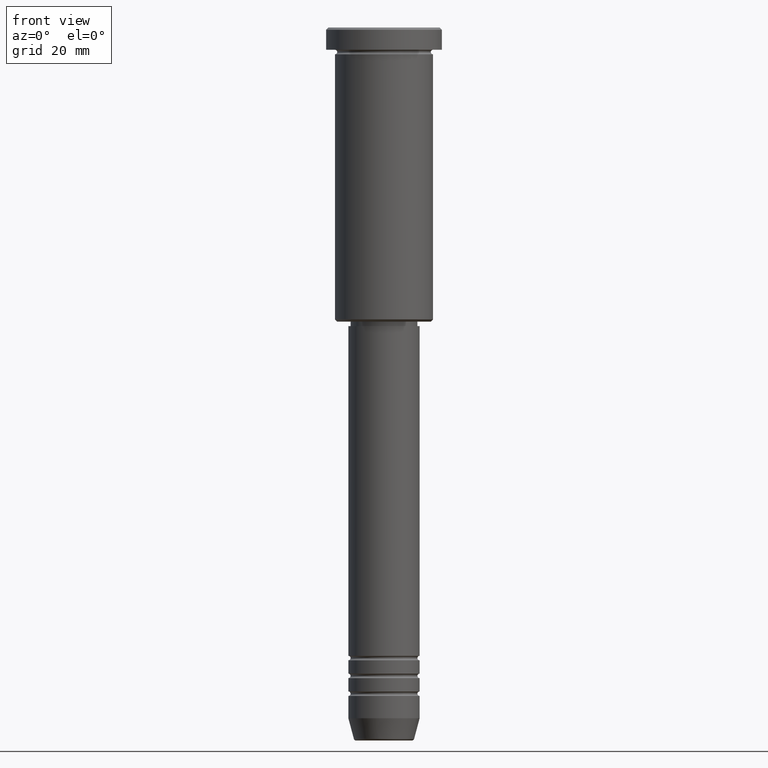
[diagram: clean part render]
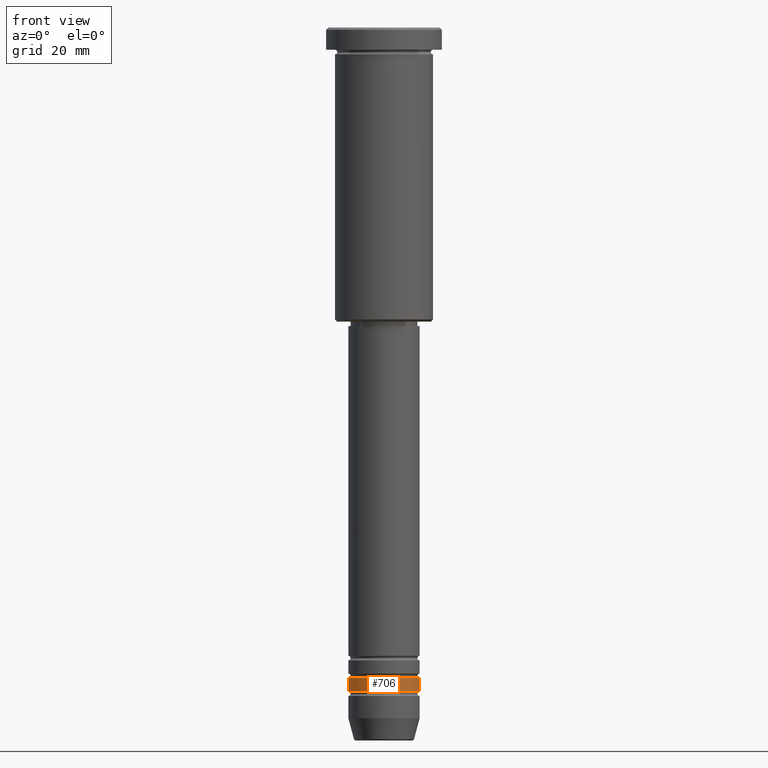
[diagram: same view with one face highlighted and labeled with its STEP entity id]
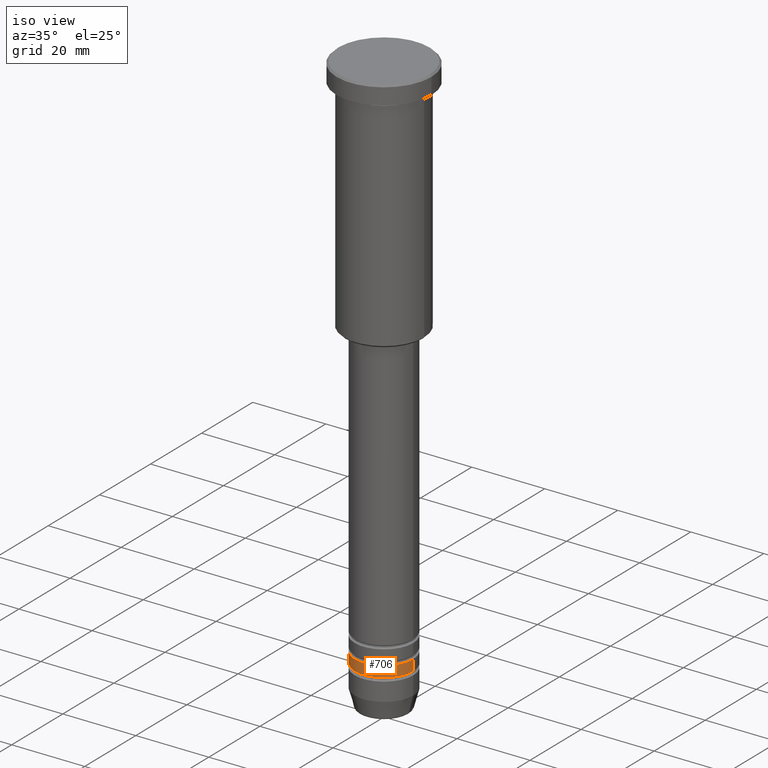
[diagram: same view with one face highlighted and labeled with its STEP entity id]
A machine part, front view. The second image highlights one B-rep face of the part: STEP entity #706.
A second angle (iso view) of the same face is appended — the face is thin or edge-on in the first view.
In plain terms, the highlighted cylindrical surface (edge-blend (fillet) strip) has radius 8 mm, axis along (-0, -0, 1).
Its self-contained STEP definition (entity closure, byte-faithful):
#18 = CARTESIAN_POINT ( 'NONE',  ( 8.000000000000000000, 0.000000000000000000, 0.000000000000000000 ) ) ;
#42 = EDGE_CURVE ( 'NONE', #604, #616, #557, .T. ) ;
#141 = CIRCLE ( 'NONE', #807, 8.000000000000000000 ) ;
#161 = CARTESIAN_POINT ( 'NONE',  ( -8.000000000000000000, 9.797174393178825657E-16, -146.0000000000000000 ) ) ;
#186 = DIRECTION ( 'NONE',  ( -0.000000000000000000, -0.000000000000000000, 1.000000000000000000 ) ) ;
#187 = ORIENTED_EDGE ( 'NONE', *, *, #333, .T. ) ;
#227 = ORIENTED_EDGE ( 'NONE', *, *, #233, .F. ) ;
#233 = EDGE_CURVE ( 'NONE', #449, #616, #854, .T. ) ;
#287 = ORIENTED_EDGE ( 'NONE', *, *, #618, .F. ) ;
#291 = ORIENTED_EDGE ( 'NONE', *, *, #42, .T. ) ;
#330 = EDGE_LOOP ( 'NONE', ( #287, #187, #291, #227 ) ) ;
#333 = EDGE_CURVE ( 'NONE', #833, #604, #141, .T. ) ;
#381 = CARTESIAN_POINT ( 'NONE',  ( 8.000000000000000000, 0.000000000000000000, -148.9999999999999716 ) ) ;
#403 = DIRECTION ( 'NONE',  ( -0.000000000000000000, -0.000000000000000000, 1.000000000000000000 ) ) ;
#435 = VECTOR ( 'NONE', #1075, 1000.000000000000000 ) ;
#449 = VERTEX_POINT ( 'NONE', #161 ) ;
#503 = VECTOR ( 'NONE', #186, 1000.000000000000000 ) ;
#511 = CARTESIAN_POINT ( 'NONE',  ( -8.000000000000000000, 9.797174393178825657E-16, -148.9999999999999716 ) ) ;
#557 = LINE ( 'NONE', #18, #435 ) ;
#592 = FACE_OUTER_BOUND ( 'NONE', #330, .T. ) ;
#604 = VERTEX_POINT ( 'NONE', #381 ) ;
#609 = DIRECTION ( 'NONE',  ( 1.000000000000000000, 0.000000000000000000, 0.000000000000000000 ) ) ;
#616 = VERTEX_POINT ( 'NONE', #729 ) ;
#618 = EDGE_CURVE ( 'NONE', #833, #449, #1095, .T. ) ;
#639 = CARTESIAN_POINT ( 'NONE',  ( -8.000000000000000000, 9.797174393178825657E-16, 0.000000000000000000 ) ) ;
#689 = CARTESIAN_POINT ( 'NONE',  ( 0.000000000000000000, 0.000000000000000000, -146.0000000000000000 ) ) ;
#693 = DIRECTION ( 'NONE',  ( 1.000000000000000000, 0.000000000000000000, 0.000000000000000000 ) ) ;
#706 = ADVANCED_FACE ( 'NONE', ( #592 ), #1132, .T. ) ;
#729 = CARTESIAN_POINT ( 'NONE',  ( 8.000000000000000000, 0.000000000000000000, -146.0000000000000000 ) ) ;
#757 = AXIS2_PLACEMENT_3D ( 'NONE', #1029, #1054, #960 ) ;
#807 = AXIS2_PLACEMENT_3D ( 'NONE', #881, #978, #609 ) ;
#833 = VERTEX_POINT ( 'NONE', #511 ) ;
#854 = CIRCLE ( 'NONE', #946, 8.000000000000000000 ) ;
#881 = CARTESIAN_POINT ( 'NONE',  ( 0.000000000000000000, 0.000000000000000000, -148.9999999999999716 ) ) ;
#946 = AXIS2_PLACEMENT_3D ( 'NONE', #689, #403, #693 ) ;
#960 = DIRECTION ( 'NONE',  ( 1.000000000000000000, 0.000000000000000000, 0.000000000000000000 ) ) ;
#978 = DIRECTION ( 'NONE',  ( -0.000000000000000000, -0.000000000000000000, 1.000000000000000000 ) ) ;
#1029 = CARTESIAN_POINT ( 'NONE',  ( 0.000000000000000000, 0.000000000000000000, 0.000000000000000000 ) ) ;
#1054 = DIRECTION ( 'NONE',  ( -0.000000000000000000, -0.000000000000000000, 1.000000000000000000 ) ) ;
#1075 = DIRECTION ( 'NONE',  ( -0.000000000000000000, -0.000000000000000000, 1.000000000000000000 ) ) ;
#1095 = LINE ( 'NONE', #639, #503 ) ;
#1132 = CYLINDRICAL_SURFACE ( 'NONE', #757, 8.000000000000000000 ) ;